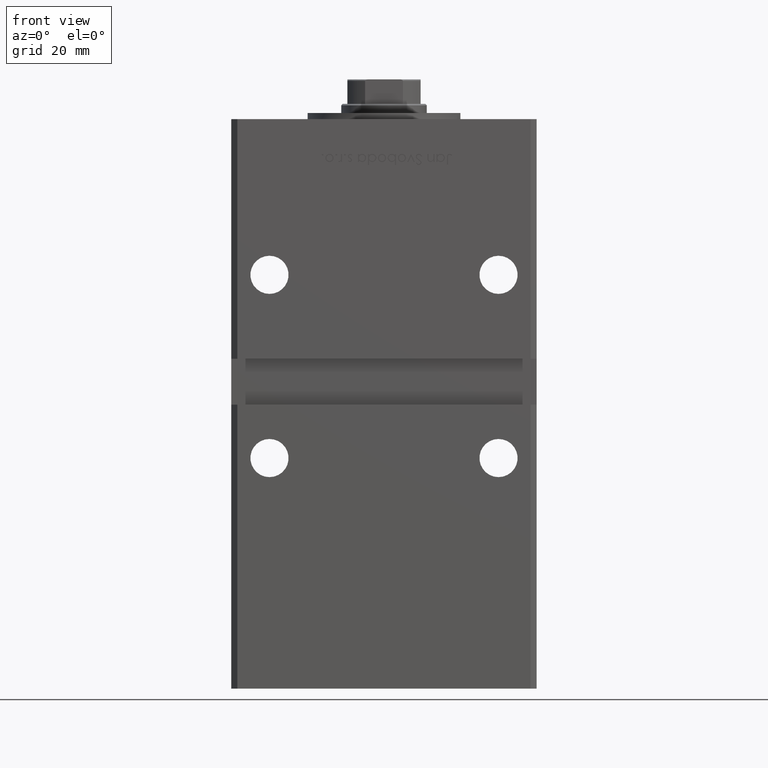
[diagram: clean part render]
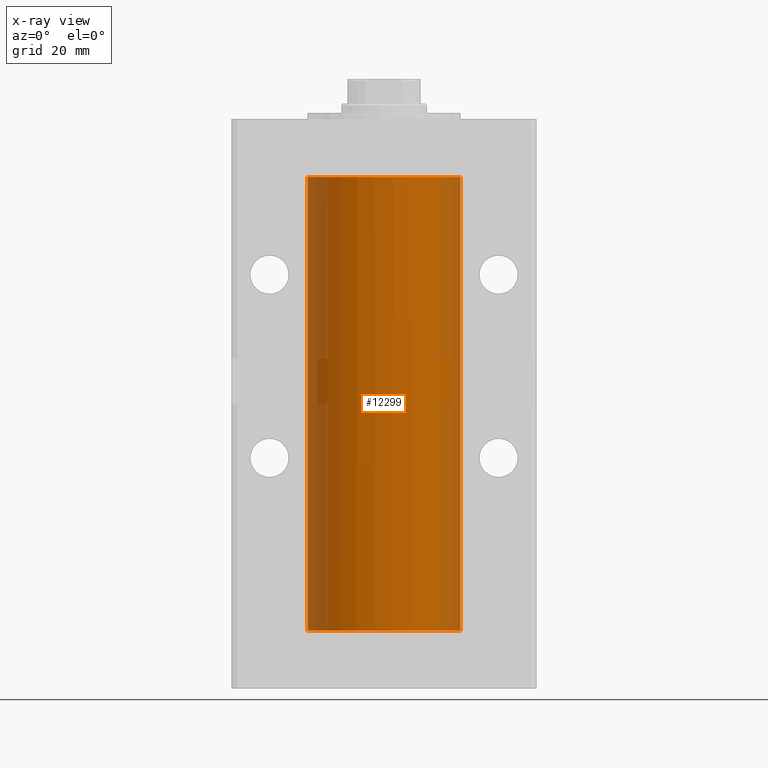
[diagram: x-ray — body ghosted, one internal face saturated and labeled with its STEP entity id]
A machine part, front view, then the same camera in x-ray: the body is ghosted and one INTERNAL B-rep face — a face not visible from any outside direction — is saturated and labeled: STEP entity #12299.
In plain terms, the highlighted cylindrical surface (partial cylindrical patch) has radius 25 mm, axis along (-0, -0, -1).
Its self-contained STEP definition (entity closure, byte-faithful):
#1370 = VERTEX_POINT ( 'NONE', #22196 ) ;
#1597 = DIRECTION ( 'NONE',  ( -0.000000000000000000, -0.000000000000000000, -1.000000000000000000 ) ) ;
#3601 = EDGE_CURVE ( 'NONE', #29999, #1370, #46856, .T. ) ;
#4202 = EDGE_LOOP ( 'NONE', ( #11745, #7663, #35617, #45470 ) ) ;
#6716 = DIRECTION ( 'NONE',  ( -0.000000000000000000, -0.000000000000000000, -1.000000000000000000 ) ) ;
#7483 = AXIS2_PLACEMENT_3D ( 'NONE', #9279, #50487, #50224 ) ;
#7663 = ORIENTED_EDGE ( 'NONE', *, *, #26394, .T. ) ;
#7688 = CARTESIAN_POINT ( 'NONE',  ( 25.00000000000000000, 3.061616997868383043E-15, 148.5000000000000000 ) ) ;
#9279 = CARTESIAN_POINT ( 'NONE',  ( 0.000000000000000000, 0.000000000000000000, 0.000000000000000000 ) ) ;
#10047 = CIRCLE ( 'NONE', #7483, 25.00000000000000000 ) ;
#11705 = DIRECTION ( 'NONE',  ( -0.000000000000000000, -0.000000000000000000, -1.000000000000000000 ) ) ;
#11724 = DIRECTION ( 'NONE',  ( 1.000000000000000000, 0.000000000000000000, 0.000000000000000000 ) ) ;
#11745 = ORIENTED_EDGE ( 'NONE', *, *, #44168, .T. ) ;
#12217 = VECTOR ( 'NONE', #1597, 1000.000000000000000 ) ;
#12299 = ADVANCED_FACE ( 'NONE', ( #24342 ), #28928, .F. ) ;
#12499 = CARTESIAN_POINT ( 'NONE',  ( 0.000000000000000000, 0.000000000000000000, 148.5000000000000000 ) ) ;
#15502 = DIRECTION ( 'NONE',  ( -0.000000000000000000, 0.000000000000000000, 1.000000000000000000 ) ) ;
#21466 = VERTEX_POINT ( 'NONE', #21598 ) ;
#21598 = CARTESIAN_POINT ( 'NONE',  ( 25.00000000000000000, 3.061616997868383043E-15, 0.000000000000000000 ) ) ;
#22196 = CARTESIAN_POINT ( 'NONE',  ( -25.00000000000000000, 0.000000000000000000, 0.000000000000000000 ) ) ;
#24342 = FACE_OUTER_BOUND ( 'NONE', #4202, .T. ) ;
#26394 = EDGE_CURVE ( 'NONE', #43379, #21466, #40092, .T. ) ;
#26932 = EDGE_CURVE ( 'NONE', #1370, #21466, #10047, .T. ) ;
#28928 = CYLINDRICAL_SURFACE ( 'NONE', #41599, 25.00000000000000000 ) ;
#29999 = VERTEX_POINT ( 'NONE', #47778 ) ;
#31707 = CIRCLE ( 'NONE', #38572, 25.00000000000000000 ) ;
#32398 = VECTOR ( 'NONE', #6716, 1000.000000000000000 ) ;
#34442 = CARTESIAN_POINT ( 'NONE',  ( -25.00000000000000000, 0.000000000000000000, 148.5000000000000000 ) ) ;
#35528 = CARTESIAN_POINT ( 'NONE',  ( 25.00000000000000000, 3.061616997868383043E-15, 148.5000000000000000 ) ) ;
#35617 = ORIENTED_EDGE ( 'NONE', *, *, #26932, .F. ) ;
#38572 = AXIS2_PLACEMENT_3D ( 'NONE', #52412, #15502, #11724 ) ;
#40092 = LINE ( 'NONE', #35528, #32398 ) ;
#41599 = AXIS2_PLACEMENT_3D ( 'NONE', #12499, #11705, #52655 ) ;
#43379 = VERTEX_POINT ( 'NONE', #7688 ) ;
#44168 = EDGE_CURVE ( 'NONE', #29999, #43379, #31707, .T. ) ;
#45470 = ORIENTED_EDGE ( 'NONE', *, *, #3601, .F. ) ;
#46856 = LINE ( 'NONE', #34442, #12217 ) ;
#47778 = CARTESIAN_POINT ( 'NONE',  ( -25.00000000000000000, 0.000000000000000000, 148.5000000000000000 ) ) ;
#50224 = DIRECTION ( 'NONE',  ( 1.000000000000000000, 0.000000000000000000, 0.000000000000000000 ) ) ;
#50487 = DIRECTION ( 'NONE',  ( -0.000000000000000000, 0.000000000000000000, 1.000000000000000000 ) ) ;
#52412 = CARTESIAN_POINT ( 'NONE',  ( 0.000000000000000000, 0.000000000000000000, 148.5000000000000000 ) ) ;
#52655 = DIRECTION ( 'NONE',  ( -1.000000000000000000, 0.000000000000000000, 0.000000000000000000 ) ) ;